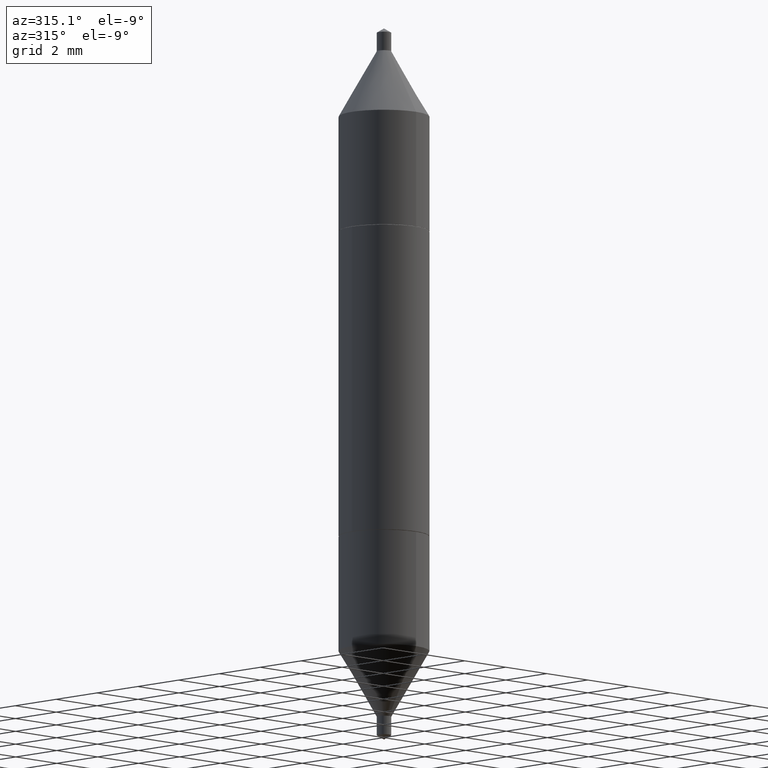
[diagram: clean part render]
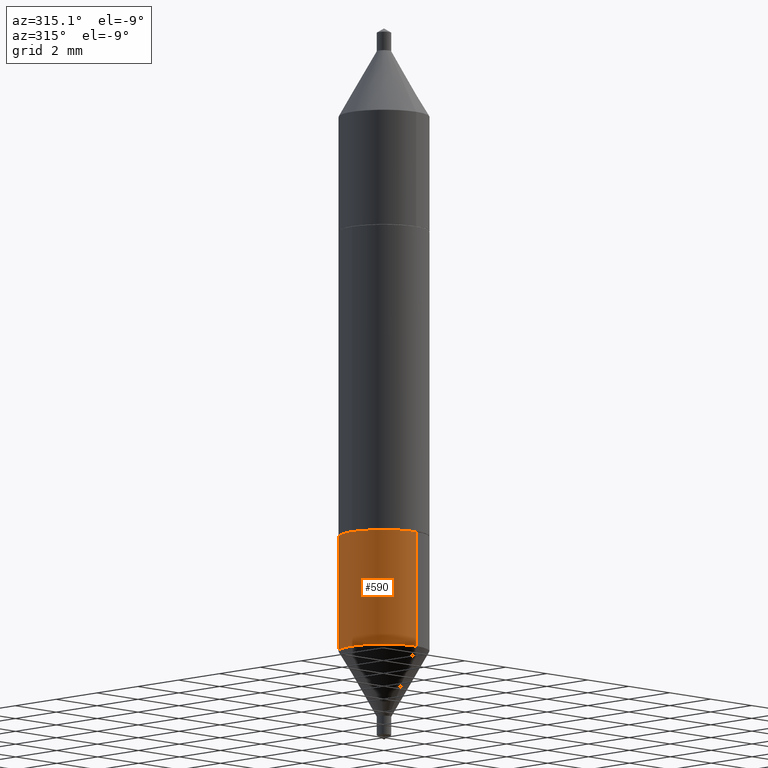
[diagram: same view with one face highlighted and labeled with its STEP entity id]
A machine part, auxiliary view. The second image highlights one B-rep face of the part: STEP entity #590.
In plain terms, the highlighted cylindrical surface (partial cylindrical patch) has radius 1.5748 mm, axis along (-0, 0, 1).
Its self-contained STEP definition (entity closure, byte-faithful):
#10 = ORIENTED_EDGE ( 'NONE', *, *, #702, .F. ) ;
#17 = VERTEX_POINT ( 'NONE', #24 ) ;
#24 = CARTESIAN_POINT ( 'NONE',  ( 4.405364961712693597E-16, 0.06199999999999874362, -0.3681735503852819336 ) ) ;
#41 = CIRCLE ( 'NONE', #280, 0.06200000000000001343 ) ;
#42 = ORIENTED_EDGE ( 'NONE', *, *, #675, .F. ) ;
#90 = CARTESIAN_POINT ( 'NONE',  ( 5.147711837019709795E-30, -7.349568218264817959E-16, -0.2104999999999999094 ) ) ;
#118 = DIRECTION ( 'NONE',  ( -2.215996635564548441E-29, 3.820098547916675301E-15, 1.000000000000000000 ) ) ;
#121 = CARTESIAN_POINT ( 'NONE',  ( -4.329436860165436333E-16, -0.06200000000000078365, -0.2104999999999996874 ) ) ;
#155 = AXIS2_PLACEMENT_3D ( 'NONE', #90, #583, #271 ) ;
#166 = LINE ( 'NONE', #121, #677 ) ;
#167 = CARTESIAN_POINT ( 'NONE',  ( 4.405364961712713319E-16, 0.06199999999999927791, -0.2105000000000001592 ) ) ;
#194 = EDGE_CURVE ( 'NONE', #17, #391, #448, .T. ) ;
#221 = CARTESIAN_POINT ( 'NONE',  ( 5.147711837019709795E-30, -7.349568218264817959E-16, -0.2104999999999999094 ) ) ;
#271 = DIRECTION ( 'NONE',  ( -6.982962677686265922E-15, -1.000000000000000000, 3.855430636219722827E-15 ) ) ;
#276 = LINE ( 'NONE', #379, #601 ) ;
#280 = AXIS2_PLACEMENT_3D ( 'NONE', #221, #118, #491 ) ;
#308 = CARTESIAN_POINT ( 'NONE',  ( -4.329436860165434361E-16, -0.06200000000000074896, -0.2104999999999996874 ) ) ;
#352 = DIRECTION ( 'NONE',  ( -2.215996635564548441E-29, 3.820098547916675301E-15, 1.000000000000000000 ) ) ;
#354 = DIRECTION ( 'NONE',  ( -6.982962677686265922E-15, -1.000000000000000000, 3.304654831045475469E-15 ) ) ;
#374 = VERTEX_POINT ( 'NONE', #167 ) ;
#379 = CARTESIAN_POINT ( 'NONE',  ( 4.405364961712675355E-16, 0.06199999999999931261, -0.2105000000000001592 ) ) ;
#391 = VERTEX_POINT ( 'NONE', #655 ) ;
#426 = EDGE_LOOP ( 'NONE', ( #42, #606, #551, #10 ) ) ;
#448 = CIRCLE ( 'NONE', #493, 0.06200000000000008282 ) ;
#467 = CARTESIAN_POINT ( 'NONE',  ( 8.641752408732728571E-30, -1.337285322698163572E-15, -0.3681735503852817115 ) ) ;
#489 = DIRECTION ( 'NONE',  ( -2.215996635564548441E-29, 3.820098547916675301E-15, 1.000000000000000000 ) ) ;
#491 = DIRECTION ( 'NONE',  ( -6.982962677686265922E-15, -1.000000000000000000, 3.855430636219725194E-15 ) ) ;
#493 = AXIS2_PLACEMENT_3D ( 'NONE', #467, #352, #354 ) ;
#526 = CYLINDRICAL_SURFACE ( 'NONE', #155, 0.06200000000000004813 ) ;
#546 = DIRECTION ( 'NONE',  ( -2.215996635564548441E-29, 3.820098547916675301E-15, 1.000000000000000000 ) ) ;
#551 = ORIENTED_EDGE ( 'NONE', *, *, #612, .T. ) ;
#577 = VERTEX_POINT ( 'NONE', #308 ) ;
#583 = DIRECTION ( 'NONE',  ( -2.215996635564548441E-29, 3.820098547916675301E-15, 1.000000000000000000 ) ) ;
#590 = ADVANCED_FACE ( 'NONE', ( #636 ), #526, .T. ) ;
#601 = VECTOR ( 'NONE', #489, 39.37007874015748143 ) ;
#606 = ORIENTED_EDGE ( 'NONE', *, *, #194, .T. ) ;
#612 = EDGE_CURVE ( 'NONE', #391, #577, #166, .T. ) ;
#636 = FACE_OUTER_BOUND ( 'NONE', #426, .T. ) ;
#655 = CARTESIAN_POINT ( 'NONE',  ( -4.329436860165404285E-16, -0.06200000000000142203, -0.3681735503852815450 ) ) ;
#675 = EDGE_CURVE ( 'NONE', #17, #374, #276, .T. ) ;
#677 = VECTOR ( 'NONE', #546, 39.37007874015748143 ) ;
#702 = EDGE_CURVE ( 'NONE', #374, #577, #41, .T. ) ;